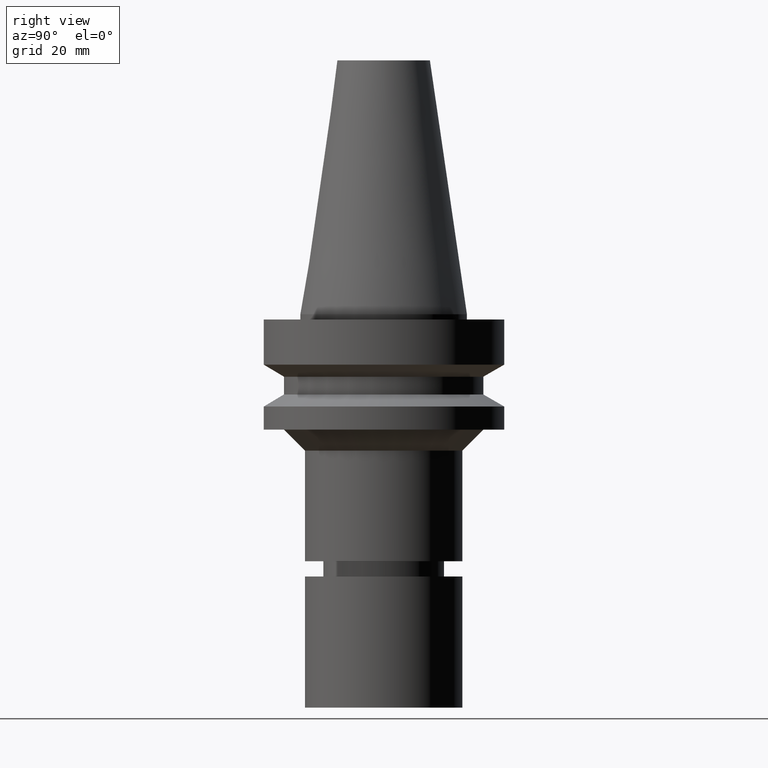
[diagram: clean part render]
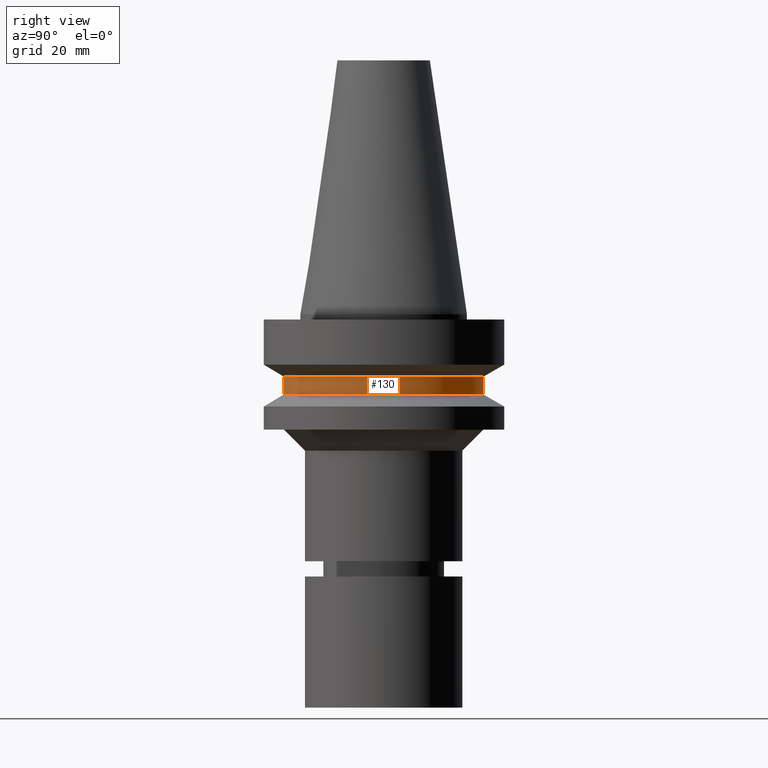
[diagram: same view with one face highlighted and labeled with its STEP entity id]
A machine part, right view. The second image highlights one B-rep face of the part: STEP entity #130.
In plain terms, the highlighted cylindrical surface (bore or boss wall) has radius 19 mm, axis along (0, 0, -1).
Its self-contained STEP definition (entity closure, byte-faithful):
#110=EDGE_CURVE('Unnamed[1]',#256,#256,#257,.T.);
#130=ADVANCED_FACE('Unnamed[1]',(#286,#287),#288,.T.);
#136=EDGE_CURVE('Unnamed[1]',#296,#296,#297,.T.);
#256=VERTEX_POINT('',#446);
#257=CIRCLE('',#447,19.0);
#286=FACE_BOUND('',#482,.T.);
#287=FACE_BOUND('',#483,.T.);
#288=CYLINDRICAL_SURFACE('',#484,19.0);
#296=VERTEX_POINT('',#495);
#297=CIRCLE('',#496,19.0);
#446=CARTESIAN_POINT('',(7.29240495619202E-016,19.0,-11.90940108));
#447=AXIS2_PLACEMENT_3D('',#642,#643,#644);
#482=EDGE_LOOP('',(#674));
#483=EDGE_LOOP('',(#675));
#484=AXIS2_PLACEMENT_3D('',#676,#677,#678);
#495=CARTESIAN_POINT('',(9.36279151221199E-016,19.0,-15.29059892));
#496=AXIS2_PLACEMENT_3D('',#685,#686,#687);
#642=CARTESIAN_POINT('',(7.29240495619202E-016,1.4584809912384E-015,-11.90940108));
#643=DIRECTION('',(6.12323399573677E-017,1.22464679914735E-016,-1.0));
#644=DIRECTION('',(-1.23259516440783E-032,1.0,1.22464679914735E-016));
#674=ORIENTED_EDGE('',*,*,#136,.F.);
#675=ORIENTED_EDGE('',*,*,#110,.T.);
#676=CARTESIAN_POINT('',(8.32759823420201E-016,1.6655196468404E-015,-13.6));
#677=DIRECTION('',(6.12323399573677E-017,1.22464679914735E-016,-1.0));
#678=DIRECTION('',(-1.23259516440783E-032,1.0,1.22464679914735E-016));
#685=CARTESIAN_POINT('',(9.36279151221199E-016,1.8725583024424E-015,-15.29059892));
#686=DIRECTION('',(6.12323399573677E-017,1.22464679914735E-016,-1.0));
#687=DIRECTION('',(-1.23259516440783E-032,1.0,1.22464679914735E-016));